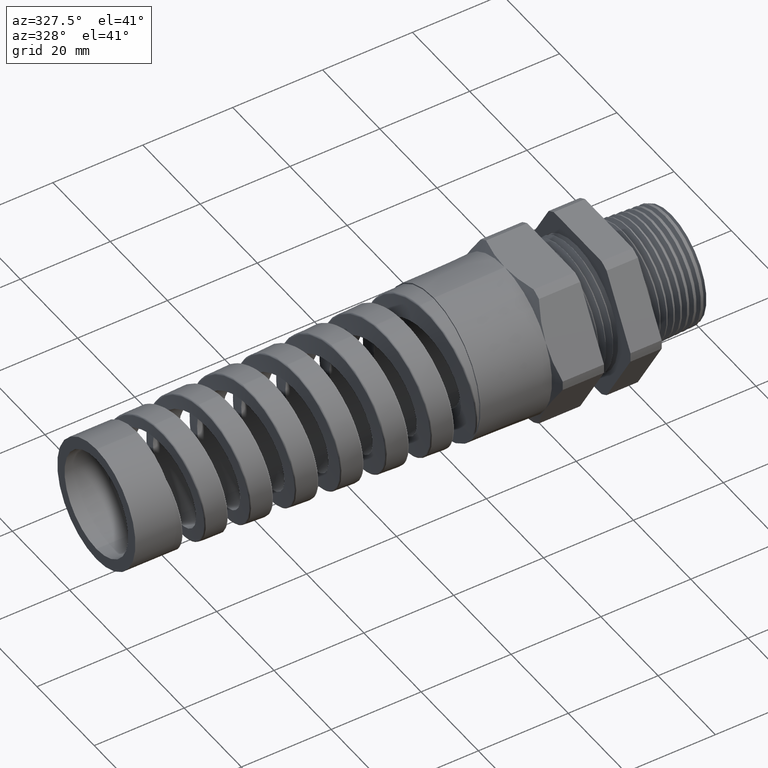
[diagram: clean part render]
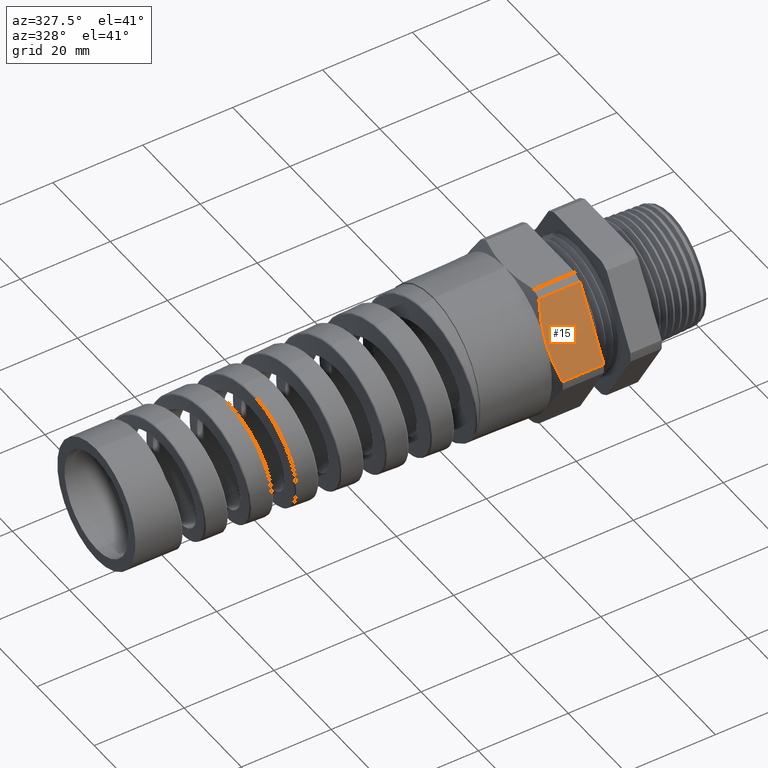
[diagram: same view with one face highlighted and labeled with its STEP entity id]
A machine part, auxiliary view. The second image highlights one B-rep face of the part: STEP entity #15.
In plain terms, the highlighted planar face has unit normal (0, -0.866, 0.5).
Its self-contained STEP definition (entity closure, byte-faithful):
#5 = EDGE_LOOP ( 'NONE', ( #7, #6, #59, #40, #57 ) ) ;
#6 = ORIENTED_EDGE ( 'NONE', *, *, #13, .T. ) ;
#7 = ORIENTED_EDGE ( 'NONE', *, *, #56, .F. ) ;
#13 = EDGE_CURVE ( 'NONE', #93, #5318, #956, .T. ) ;
#15 = ADVANCED_FACE ( 'NONE', ( #954 ), #953, .T. ) ;
#23 = VERTEX_POINT ( 'NONE', #995 ) ;
#40 = ORIENTED_EDGE ( 'NONE', *, *, #4979, .T. ) ;
#42 = EDGE_CURVE ( 'NONE', #5318, #4984, #1017, .T. ) ;
#49 = EDGE_CURVE ( 'NONE', #4981, #23, #1041, .T. ) ;
#56 = EDGE_CURVE ( 'NONE', #93, #23, #1036, .T. ) ;
#57 = ORIENTED_EDGE ( 'NONE', *, *, #49, .T. ) ;
#59 = ORIENTED_EDGE ( 'NONE', *, *, #42, .T. ) ;
#93 = VERTEX_POINT ( 'NONE', #1170 ) ;
#947 = CARTESIAN_POINT ( 'NONE',  ( -0.9125000000000002000, -0.5629165124598850500, 0.3249999999999999600 ) ) ;
#948 = CARTESIAN_POINT ( 'NONE',  ( -0.9125000000000004200, -0.5351819839639024900, 0.3730376124790081300 ) ) ;
#949 = CARTESIAN_POINT ( 'NONE',  ( -0.9083465192945224800, -0.5076765033783838800, 0.4206785023397256500 ) ) ;
#950 = CARTESIAN_POINT ( 'NONE',  ( -0.8928224553762588200, -0.4530635366525169200, 0.5152709354609957800 ) ) ;
#951 = CARTESIAN_POINT ( 'NONE',  ( -0.8814868053153364100, -0.4259541240880419500, 0.5622258153860125700 ) ) ;
#952 = CARTESIAN_POINT ( 'NONE',  ( -0.8674666790032094000, -0.3989927496919438700, 0.6089242856819410100 ) ) ;
#953 = PLANE ( 'NONE',  #1002 ) ;
#954 = FACE_OUTER_BOUND ( 'NONE', #5, .T. ) ;
#956 = B_SPLINE_CURVE_WITH_KNOTS ( 'NONE', 3,
 ( #952, #951, #950, #949, #948, #947 ),
 .UNSPECIFIED., .F., .F.,
 ( 4, 2, 4 ),
 ( 2.361308568637535600E-007, 0.004201502711991014900, 0.008402769293125167400 ),
 .UNSPECIFIED. ) ;
#995 = CARTESIAN_POINT ( 'NONE',  ( -0.5058333333333336900, -0.3989927496919437600, 0.6089242856819410100 ) ) ;
#999 = DIRECTION ( 'NONE',  ( 0.0000000000000000000, -0.5000000000000000000, -0.8660254037844386000 ) ) ;
#1000 = DIRECTION ( 'NONE',  ( 0.0000000000000000000, -0.8660254037844387100, 0.5000000000000001100 ) ) ;
#1001 = CARTESIAN_POINT ( 'NONE',  ( -2.992185896283379200, -0.3989927496919439800, 0.6089242856819407900 ) ) ;
#1002 = AXIS2_PLACEMENT_3D ( 'NONE', #1001, #1000, #999 ) ;
#1009 = CARTESIAN_POINT ( 'NONE',  ( -0.8674666790032094000, -0.7268402752278256800, 0.04107571431805912000 ) ) ;
#1010 = CARTESIAN_POINT ( 'NONE',  ( -0.8814205714001800400, -0.7000062718228485800, 0.08755357158595522500 ) ) ;
#1011 = CARTESIAN_POINT ( 'NONE',  ( -0.8927551590989972800, -0.6729577337251735300, 0.1344030138415908400 ) ) ;
#1012 = CARTESIAN_POINT ( 'NONE',  ( -0.9044328033704855900, -0.6319488438240192800, 0.2054324947123887800 ) ) ;
#1013 = CARTESIAN_POINT ( 'NONE',  ( -0.9074375322794263600, -0.6182064968433951300, 0.2292349378980705900 ) ) ;
#1014 = CARTESIAN_POINT ( 'NONE',  ( -0.9114778356147184000, -0.5905605188772367100, 0.2771191763603863000 ) ) ;
#1015 = CARTESIAN_POINT ( 'NONE',  ( -0.9125000000000004200, -0.5766899915409090500, 0.3011436344346789000 ) ) ;
#1016 = CARTESIAN_POINT ( 'NONE',  ( -0.9125000000000002000, -0.5629165124598850500, 0.3249999999999999600 ) ) ;
#1017 = B_SPLINE_CURVE_WITH_KNOTS ( 'NONE', 3,
 ( #1016, #1015, #1014, #1013, #1012, #1011, #1010, #1009 ),
 .UNSPECIFIED., .F., .F.,
 ( 4, 2, 2, 4 ),
 ( 0.008402769293125167400, 0.01048919587064711100, 0.01257562244816905700, 0.01674847560321295400 ),
 .UNSPECIFIED. ) ;
#1034 = DIRECTION ( 'NONE',  ( 1.000000000000000000, 0.0000000000000000000, 0.0000000000000000000 ) ) ;
#1035 = CARTESIAN_POINT ( 'NONE',  ( -2.992185896283379200, -0.3989927496919437600, 0.6089242856819410100 ) ) ;
#1036 = LINE ( 'NONE', #1035, #1083 ) ;
#1038 = DIRECTION ( 'NONE',  ( 0.0000000000000000000, 0.5000000000000000000, 0.8660254037844386000 ) ) ;
#1039 = VECTOR ( 'NONE', #1038, 39.37007874015748100 ) ;
#1040 = CARTESIAN_POINT ( 'NONE',  ( -0.5058333333333334700, -0.4237915124598847800, 0.5659715686030198900 ) ) ;
#1041 = LINE ( 'NONE', #1040, #1039 ) ;
#1083 = VECTOR ( 'NONE', #1034, 39.37007874015748100 ) ;
#1170 = CARTESIAN_POINT ( 'NONE',  ( -0.8674666790032094000, -0.3989927496919438700, 0.6089242856819410100 ) ) ;
#4979 = EDGE_CURVE ( 'NONE', #4984, #4981, #8281, .T. ) ;
#4981 = VERTEX_POINT ( 'NONE', #8272 ) ;
#4984 = VERTEX_POINT ( 'NONE', #8270 ) ;
#5318 = VERTEX_POINT ( 'NONE', #10774 ) ;
#8270 = CARTESIAN_POINT ( 'NONE',  ( -0.8674666790032094000, -0.7268402752278256800, 0.04107571431805912000 ) ) ;
#8272 = CARTESIAN_POINT ( 'NONE',  ( -0.5058333333333336900, -0.7268402752278255700, 0.04107571431805911300 ) ) ;
#8278 = DIRECTION ( 'NONE',  ( 1.000000000000000000, 0.0000000000000000000, 0.0000000000000000000 ) ) ;
#8279 = VECTOR ( 'NONE', #8278, 39.37007874015748100 ) ;
#8280 = CARTESIAN_POINT ( 'NONE',  ( -2.992185896283379200, -0.7268402752278255700, 0.04107571431805911300 ) ) ;
#8281 = LINE ( 'NONE', #8280, #8279 ) ;
#10774 = CARTESIAN_POINT ( 'NONE',  ( -0.9125000000000002000, -0.5629165124598850500, 0.3249999999999999600 ) ) ;